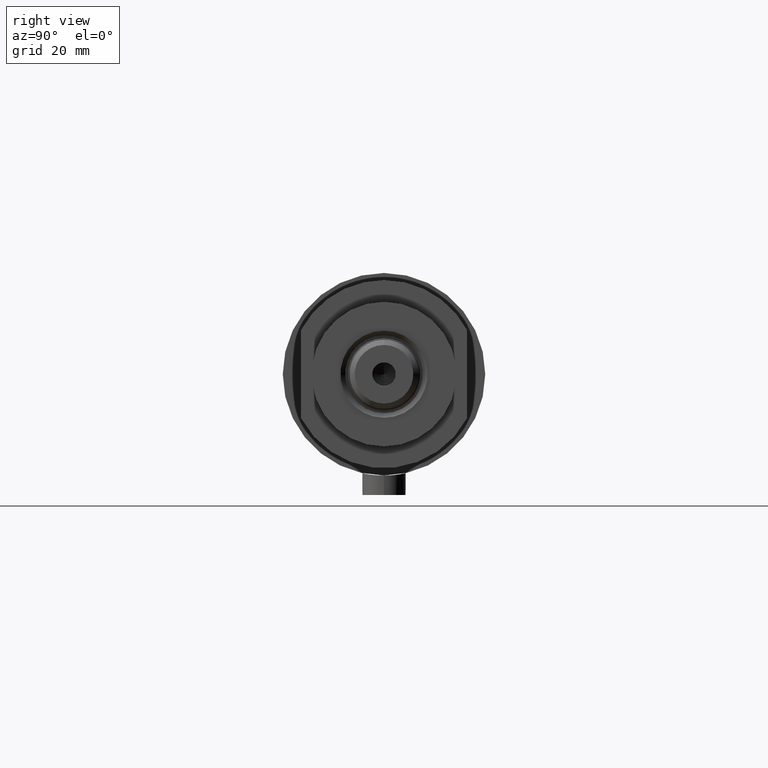
[diagram: clean part render]
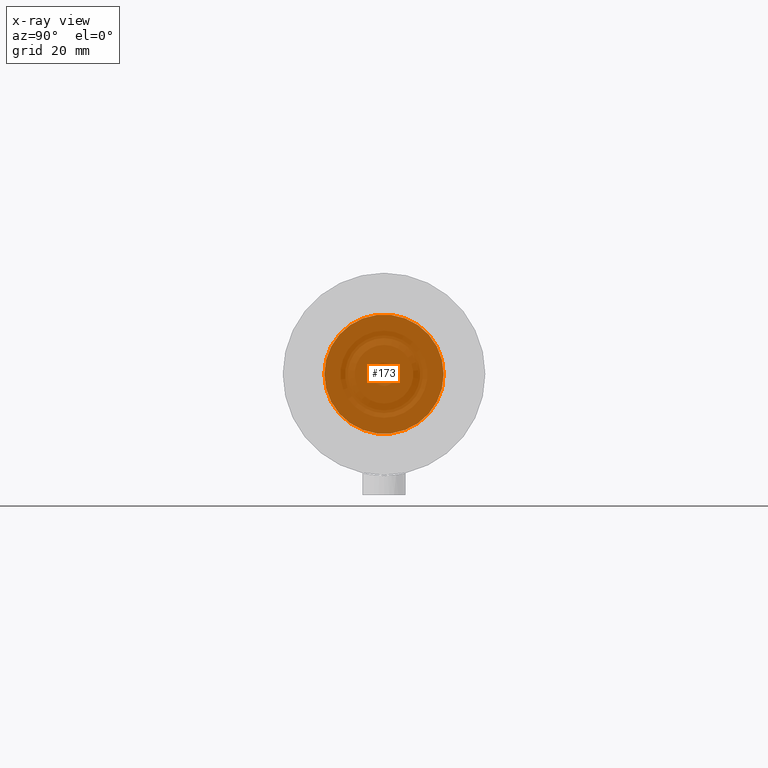
[diagram: x-ray — body ghosted, one internal face saturated and labeled with its STEP entity id]
A machine part, right view, then the same camera in x-ray: the body is ghosted and one INTERNAL B-rep face — a face not visible from any outside direction — is saturated and labeled: STEP entity #173.
In plain terms, the highlighted planar face has unit normal (1, 0, -0).
Its self-contained STEP definition (entity closure, byte-faithful):
#42 = DIRECTION ( 'NONE',  ( -1.000000000000000000, 0.000000000000000000, 0.000000000000000000 ) ) ;
#173 = ADVANCED_FACE ( 'NONE', ( #3144 ), #1776, .T. ) ;
#329 = AXIS2_PLACEMENT_3D ( 'NONE', #2868, #1441, #2544 ) ;
#364 = DIRECTION ( 'NONE',  ( -1.000000000000000000, 0.000000000000000000, 0.000000000000000000 ) ) ;
#403 = CARTESIAN_POINT ( 'NONE',  ( 0.000000000000000000, 0.000000000000000000, -25.80000000000000426 ) ) ;
#625 = EDGE_CURVE ( 'NONE', #705, #938, #1352, .T. ) ;
#705 = VERTEX_POINT ( 'NONE', #2273 ) ;
#885 = AXIS2_PLACEMENT_3D ( 'NONE', #403, #1770, #364 ) ;
#938 = VERTEX_POINT ( 'NONE', #2999 ) ;
#1263 = EDGE_LOOP ( 'NONE', ( #2703, #1290 ) ) ;
#1290 = ORIENTED_EDGE ( 'NONE', *, *, #625, .T. ) ;
#1352 = CIRCLE ( 'NONE', #2328, 16.50000000000000000 ) ;
#1441 = DIRECTION ( 'NONE',  ( 0.000000000000000000, 0.000000000000000000, -1.000000000000000000 ) ) ;
#1770 = DIRECTION ( 'NONE',  ( 0.000000000000000000, 0.000000000000000000, -1.000000000000000000 ) ) ;
#1771 = EDGE_CURVE ( 'NONE', #938, #705, #3500, .T. ) ;
#1776 = PLANE ( 'NONE',  #329 ) ;
#2273 = CARTESIAN_POINT ( 'NONE',  ( -16.50000000000000000, 2.020667218593133100E-15, -25.80000000000000426 ) ) ;
#2328 = AXIS2_PLACEMENT_3D ( 'NONE', #2759, #2512, #42 ) ;
#2512 = DIRECTION ( 'NONE',  ( 0.000000000000000000, 0.000000000000000000, -1.000000000000000000 ) ) ;
#2544 = DIRECTION ( 'NONE',  ( -1.000000000000000000, 0.000000000000000000, -0.000000000000000000 ) ) ;
#2703 = ORIENTED_EDGE ( 'NONE', *, *, #1771, .T. ) ;
#2759 = CARTESIAN_POINT ( 'NONE',  ( 0.000000000000000000, 0.000000000000000000, -25.80000000000000426 ) ) ;
#2868 = CARTESIAN_POINT ( 'NONE',  ( 0.000000000000000000, 0.000000000000000000, -25.80000000000000426 ) ) ;
#2999 = CARTESIAN_POINT ( 'NONE',  ( 16.50000000000000000, 0.000000000000000000, -25.80000000000000426 ) ) ;
#3144 = FACE_OUTER_BOUND ( 'NONE', #1263, .T. ) ;
#3500 = CIRCLE ( 'NONE', #885, 16.50000000000000000 ) ;